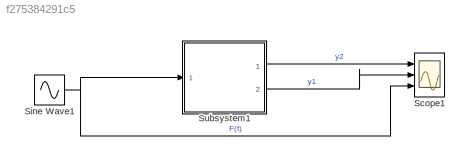
MODEL slx_f275384291c5
KIND model
CONFIG AbsTol = auto
CONFIG EnableMultiTasking = off
CONFIG FixedStep = auto
CONFIG MaxStep = auto
CONFIG MinStep = auto
CONFIG RelTol = 1e-3
CONFIG SampleTimeConstraint = Unconstrained
CONFIG SolverName = VariableStepAuto
CONFIG StartTime = 0.0
CONFIG StopTime = 100
WORKSPACE source: mxarray member
WORKSPACE b = 50
WORKSPACE k1 = 50
WORKSPACE k12 = 0
WORKSPACE m1 = 100
WORKSPACE m2 = 0
BLOCK [Scope] Scope1
  Floating = off
  NumInputPorts = 3
  Ports = [3]
  ScopeSpecificationString = Simulink.scopes.TimeScopeBlockCfg('CurrentConfiguration', extmgr.ConfigurationSet(extmgr.Configuration('Core','General UI',true),extmgr.Configuration('Core','Source UI',true),extmgr.Configuration('Sources','WiredSimulink',true,'DataLoggingVariableName','ScopeData1'),extmgr.Configuration('Visuals','Time Domain',true,'SerializedDisplays',{struct('MinYLimReal','-0.00117','MaxYLimReal','0.00223','YLab...<+2774ch>
BLOCK [Sin] Sine Wave1
  Amplitude = 3
  Frequency = 10
  Ports = [0, 1]
  SampleTime = 0
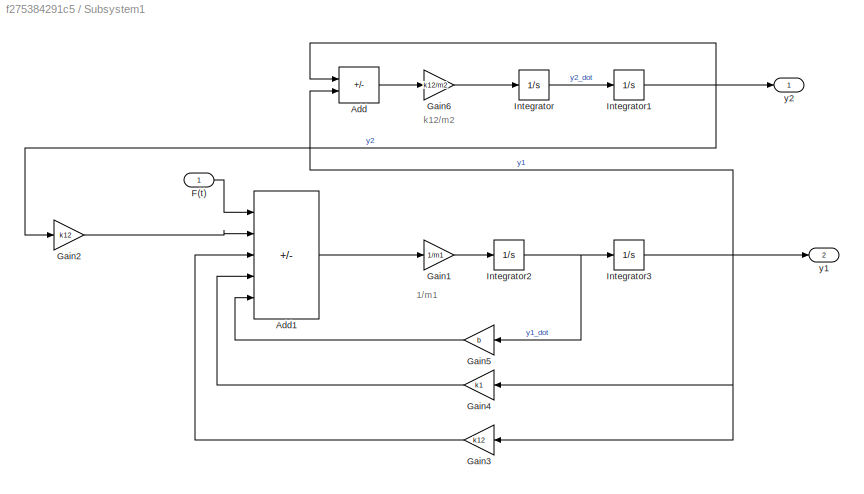
BLOCK [SubSystem] Subsystem1
  Ports = [1, 2]
  RequestExecContextInheritance = off
BLOCK [Sum] Subsystem1/Add
  IconShape = rectangular
  Inputs = -+
  Ports = [2, 1]
BLOCK [Sum] Subsystem1/Add1
  IconShape = rectangular
  Inputs = ++---
  Ports = [5, 1]
BLOCK [Inport] Subsystem1/F(t)
BLOCK [Gain] Subsystem1/Gain1
  Gain = 1/m1
BLOCK [Gain] Subsystem1/Gain2
  Gain = k12
BLOCK [Gain] Subsystem1/Gain3
  Gain = k12
BLOCK [Gain] Subsystem1/Gain4
  Gain = k1
BLOCK [Gain] Subsystem1/Gain5
  Gain = b
BLOCK [Gain] Subsystem1/Gain6
  Gain = k12/m2
BLOCK [Integrator] Subsystem1/Integrator
  Ports = [1, 1]
BLOCK [Integrator] Subsystem1/Integrator1
  Ports = [1, 1]
BLOCK [Integrator] Subsystem1/Integrator2
  Ports = [1, 1]
BLOCK [Integrator] Subsystem1/Integrator3
  Ports = [1, 1]
BLOCK [Outport] Subsystem1/y1
  Port = 2
BLOCK [Outport] Subsystem1/y2
ANNOTATION Subsystem1: 1/m1
ANNOTATION Subsystem1: k12/m2
NET Sine Wave1:1 -> Scope1:3, Subsystem1:1
LINE Subsystem1/Add1:1 -> Subsystem1/Gain1:1
LINE Subsystem1/Add:1 -> Subsystem1/Gain6:1
LINE Subsystem1/F(t):1 -> Subsystem1/Add1:1
LINE Subsystem1/Gain1:1 -> Subsystem1/Integrator2:1
LINE Subsystem1/Gain2:1 -> Subsystem1/Add1:2
LINE Subsystem1/Gain3:1 -> Subsystem1/Add1:3
LINE Subsystem1/Gain4:1 -> Subsystem1/Add1:4
LINE Subsystem1/Gain5:1 -> Subsystem1/Add1:5
LINE Subsystem1/Gain6:1 -> Subsystem1/Integrator:1
NET Subsystem1/Integrator1:1 -> Subsystem1/Add:1, Subsystem1/Gain2:1, Subsystem1/y2:1
NET Subsystem1/Integrator2:1 -> Subsystem1/Gain5:1, Subsystem1/Integrator3:1
NET Subsystem1/Integrator3:1 -> Subsystem1/Add:2, Subsystem1/Gain3:1, Subsystem1/Gain4:1, Subsystem1/y1:1
LINE Subsystem1/Integrator:1 -> Subsystem1/Integrator1:1
LINE Subsystem1:1 -> Scope1:1
LINE Subsystem1:2 -> Scope1:2
note: NET lines group one-source signal fan-out (src -> all destinations, sorted); 1:1 wires keep LINE
